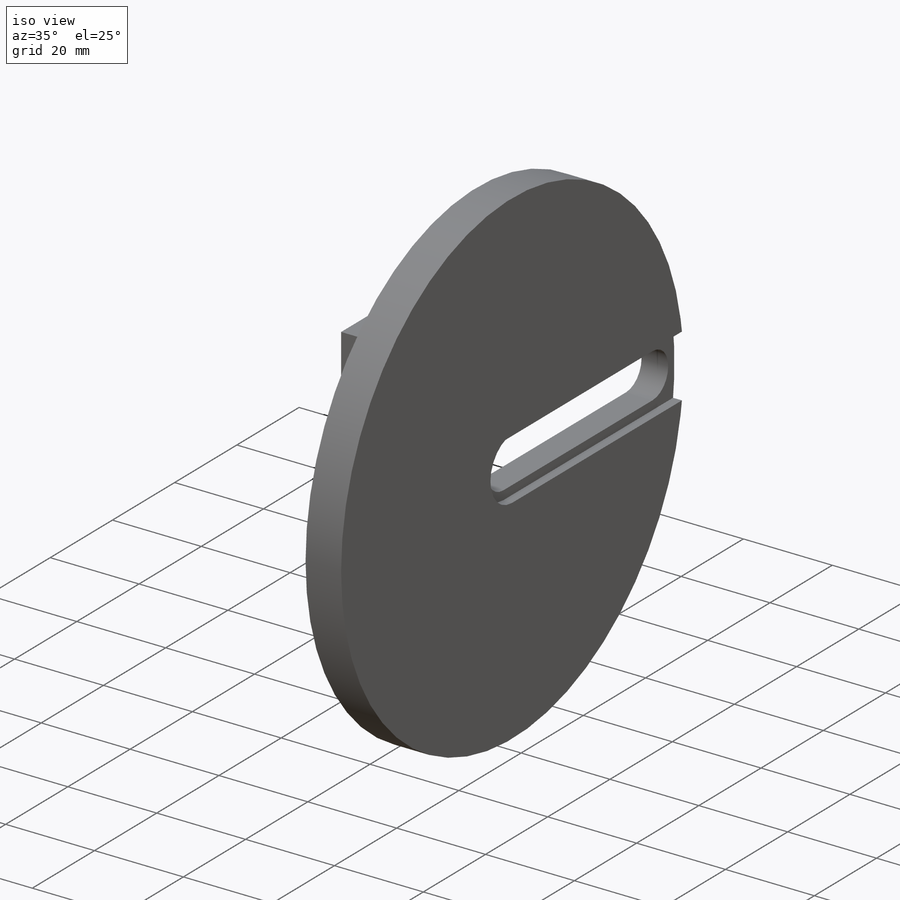
[diagram: iso view]
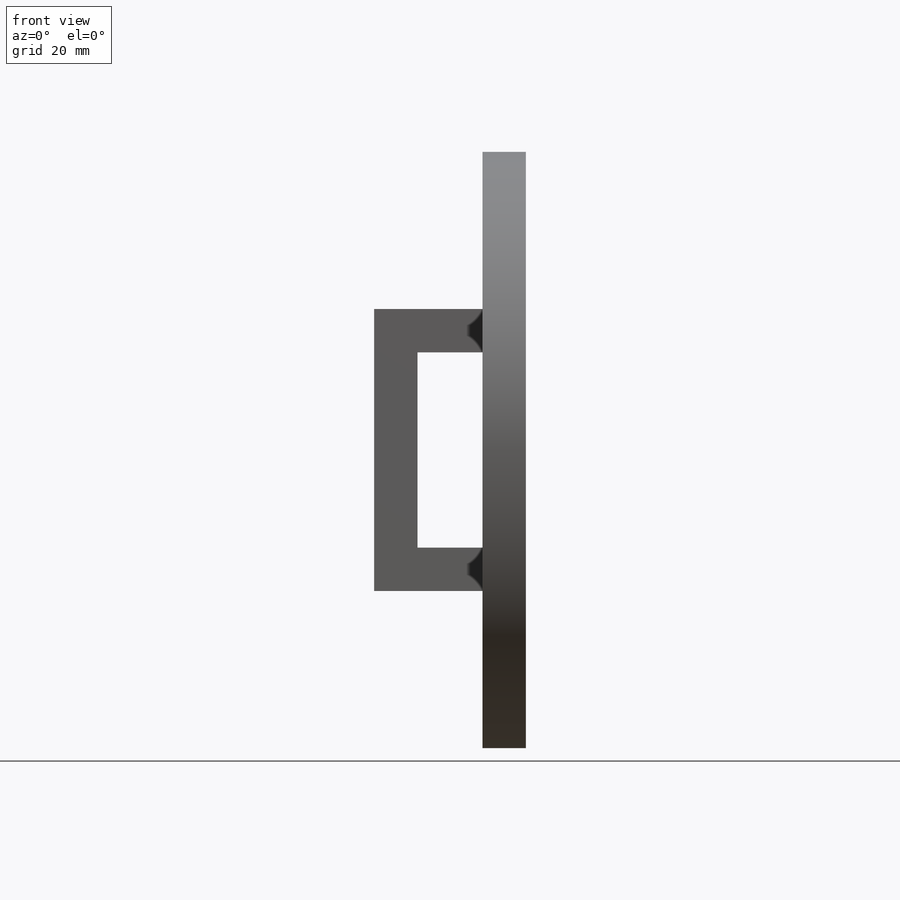
[diagram: front view]
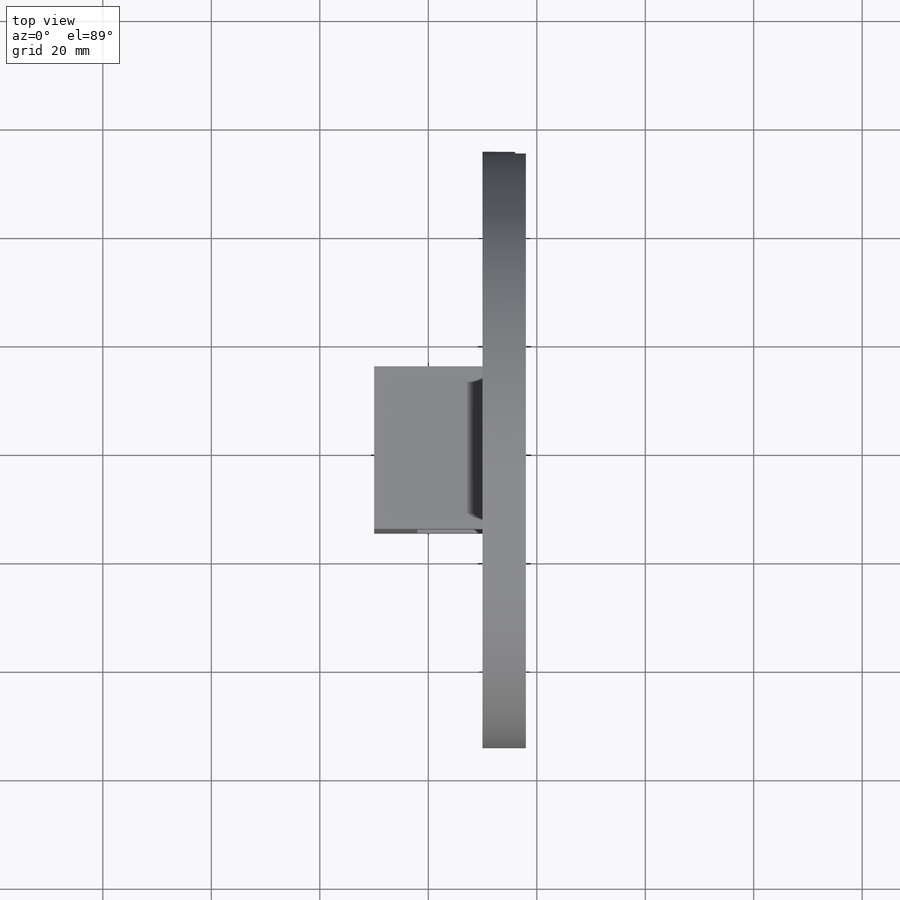
[diagram: top view]
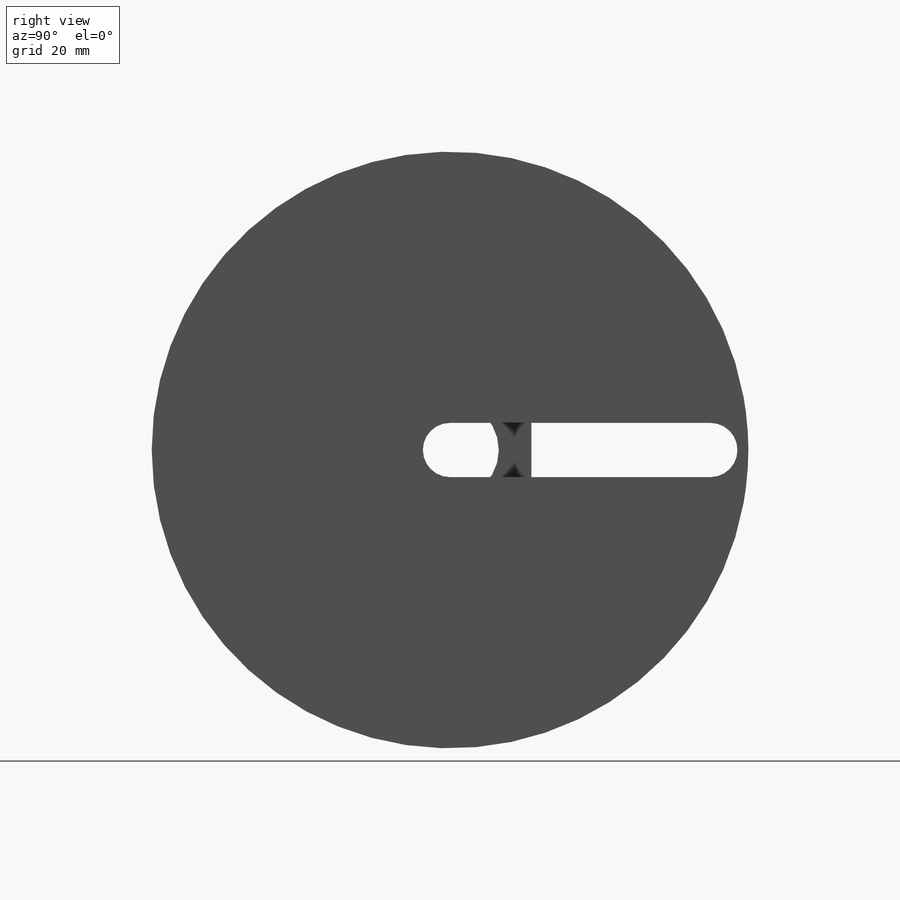
[diagram: right view]
SOLIDWORKS PART (.sldprt)
format: sldprt  version: not decoded by parser v0  size: 260,096 bytes
history: native  units: mm
features: sketch x7, extrude x4, plane x3, cut_extrude x3, material x1 (+10 scaffold rows collapsed)
feature tree (28):
  scaffold x10  (default folders/planes/origin — collapsed)
  material  "普通碳钢"
  plane  "前视基准面"
  plane  "上视基准面"
  plane  "右视基准面"
  sketch  "草图1"  dims[D1=15.0mm]
  extrude  "凸台-拉伸1"  Depth=10mm
  sketch  "草图5"  dims[c1.D1=~52.629883mm c1.D2=~29.785043mm c2.D1=30.0mm c2.D2=52.0mm]
  extrude  "凸台-拉伸2"  Depth=8mm
  sketch  "草图6"  dims[c1.D1=~4.781775mm c1.D2=30.0mm c2.D1=~5.36284mm c2.D2=30.0mm c3.D1=8.0mm c3.D2=8.0mm]
  extrude  "凸台-拉伸3"  Depth=12mm
  sketch  "草图7"  dims[D1=110.0mm]
  extrude  "凸台-拉伸4"  Depth=8mm
  sketch  "草图8"  dims[c1.D3=70.0mm c1.D4=4.0mm c1.D5=4.0mm c2.D4=5.0mm c2.D1=~25.366669mm c2.D3=48.0mm c3.D1=4.0mm c3.D2=4.0mm]
  cut_extrude  "切除-拉伸4"  [1 undecoded]
  sketch  "草图11"  dims[c1.D1=14.0mm c1.D2=47.0mm c2.D1=14.0mm]
  cut_extrude  "切除-拉伸6"  Depth=2mm
  sketch  "草图12"  dims[D1=18.0mm]
  cut_extrude  "切除-拉伸7"  [1 undecoded]
decode coverage: 12 of 14 modeling features carry decoded parameters
note: ~ marks probable driven/reference dimensions
note: 2 parameter values undecoded
note: suppression state not decoded; provenance and decode notes live in map.json
